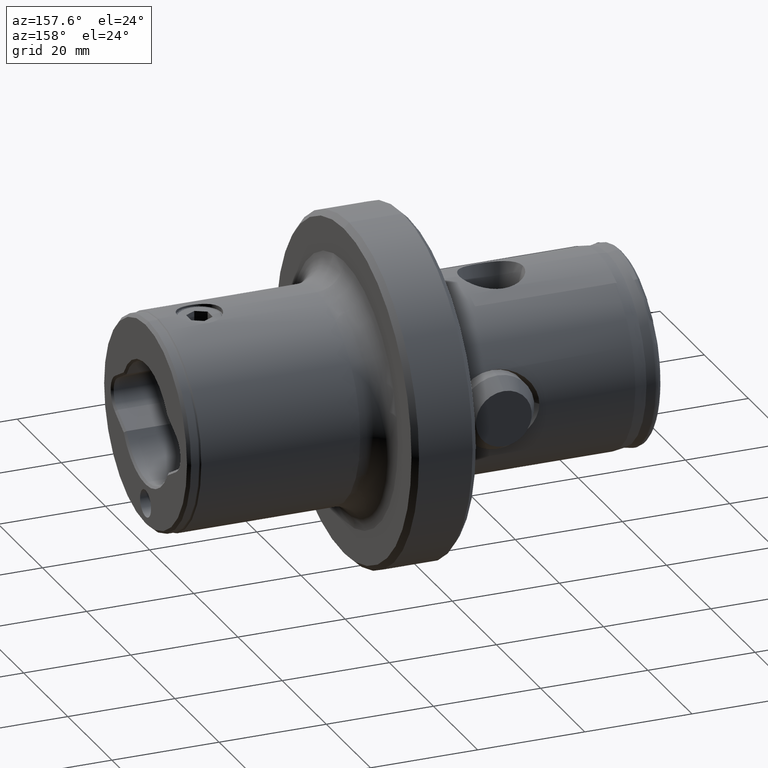
[diagram: clean part render]
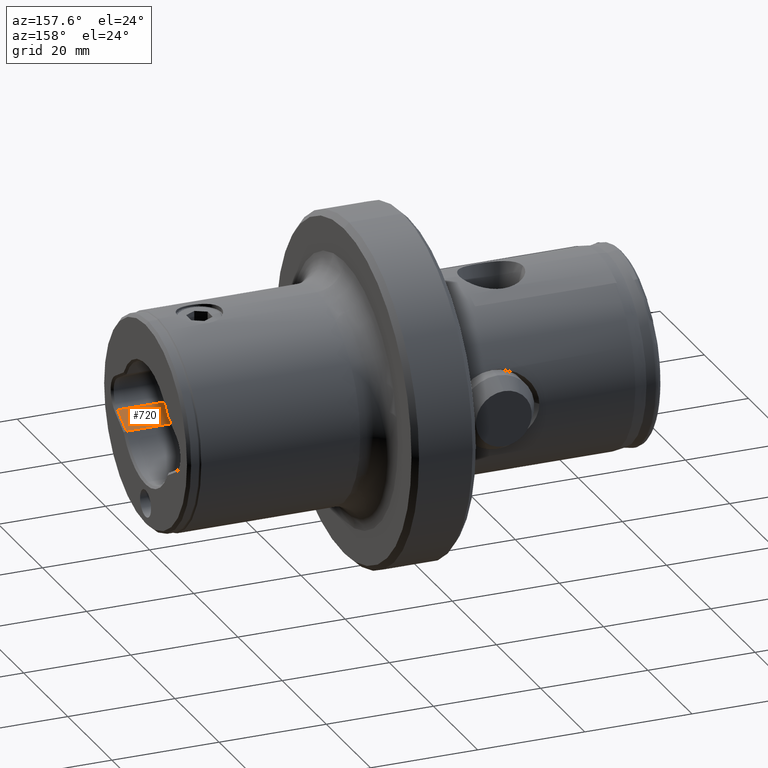
[diagram: same view with one face highlighted and labeled with its STEP entity id]
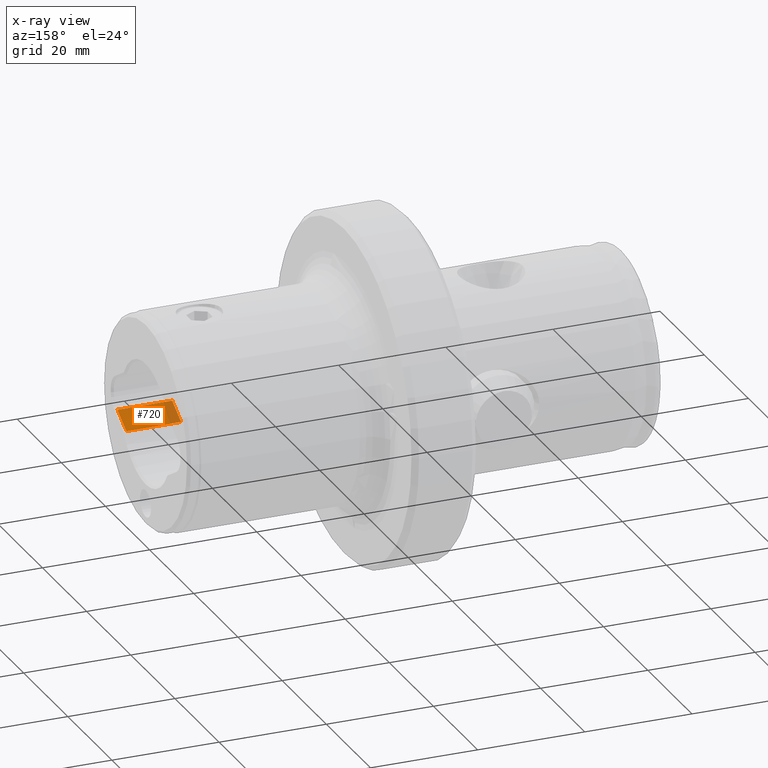
[diagram: x-ray of the same camera — body ghosted, the highlighted face saturated]
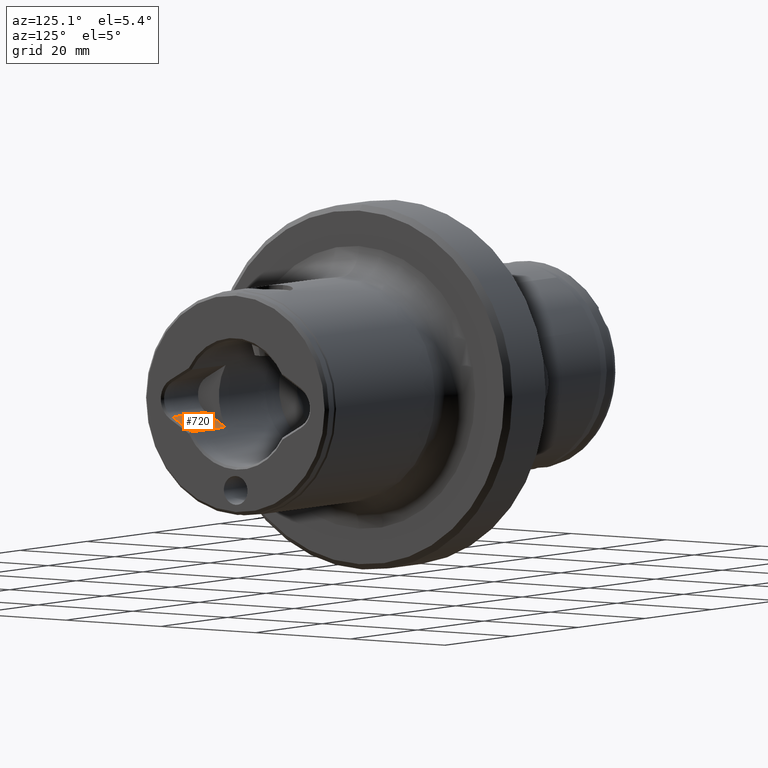
[diagram: same view with one face highlighted and labeled with its STEP entity id]
A machine part, auxiliary view. The second image highlights one B-rep face of the part: STEP entity #720.
The next image is the same camera in x-ray: the body ghosted, the highlighted face saturated — about 18% of this face is hidden behind the body in this view.
A second angle (auxiliary view) of the same face is appended — the face is thin or edge-on in the first view.
In plain terms, the highlighted planar face has unit normal (0, -0.5, -0.866).
Its self-contained STEP definition (entity closure, byte-faithful):
#1 = EDGE_CURVE ( 'NONE', #1386, #892, #4136, .T. ) ;
#702 = LINE ( 'NONE', #3358, #2704 ) ;
#717 = LINE ( 'NONE', #4903, #2852 ) ;
#720 = ADVANCED_FACE ( 'NONE', ( #2933 ), #1245, .F. ) ;
#765 = CARTESIAN_POINT ( 'NONE',  ( 88.59999999999999400, -13.66000000000002100, -3.031088913245536100 ) ) ;
#892 = VERTEX_POINT ( 'NONE', #2068 ) ;
#1048 = EDGE_CURVE ( 'NONE', #1063, #892, #702, .T. ) ;
#1063 = VERTEX_POINT ( 'NONE', #2122 ) ;
#1104 = DIRECTION ( 'NONE',  ( 1.000000000000000000, -0.0000000000000000000, -0.0000000000000000000 ) ) ;
#1245 = PLANE ( 'NONE',  #3292 ) ;
#1359 = LINE ( 'NONE', #1505, #3618 ) ;
#1386 = VERTEX_POINT ( 'NONE', #765 ) ;
#1505 = CARTESIAN_POINT ( 'NONE',  ( 78.40000000008048200, -13.66000000000002100, -3.031088913245536100 ) ) ;
#1800 = ORIENTED_EDGE ( 'NONE', *, *, #1048, .F. ) ;
#1806 = EDGE_LOOP ( 'NONE', ( #4114, #5185, #1800, #4294 ) ) ;
#2042 = DIRECTION ( 'NONE',  ( 0.0000000000000000000, -0.4999999999999975000, -0.8660254037844401500 ) ) ;
#2054 = CARTESIAN_POINT ( 'NONE',  ( 88.59999999999999400, -9.595993735232685400, -5.377444024197267000 ) ) ;
#2068 = CARTESIAN_POINT ( 'NONE',  ( 88.59999999999999400, -9.595993735232685400, -5.377444024197267900 ) ) ;
#2122 = CARTESIAN_POINT ( 'NONE',  ( 78.40000000008048200, -9.595993735232685400, -5.377444024197267900 ) ) ;
#2509 = DIRECTION ( 'NONE',  ( 0.0000000000000000000, 0.8660254037844400400, -0.4999999999999974500 ) ) ;
#2704 = VECTOR ( 'NONE', #4909, 1000.000000000000000 ) ;
#2852 = VECTOR ( 'NONE', #2509, 1000.000000000000100 ) ;
#2933 = FACE_OUTER_BOUND ( 'NONE', #1806, .T. ) ;
#3066 = VECTOR ( 'NONE', #3110, 1000.000000000000100 ) ;
#3110 = DIRECTION ( 'NONE',  ( 0.0000000000000000000, 0.8660254037844400400, -0.4999999999999974500 ) ) ;
#3254 = VERTEX_POINT ( 'NONE', #3579 ) ;
#3292 = AXIS2_PLACEMENT_3D ( 'NONE', #3629, #2042, #4828 ) ;
#3358 = CARTESIAN_POINT ( 'NONE',  ( 89.00000000000000000, -9.595993735232685400, -5.377444024197267900 ) ) ;
#3579 = CARTESIAN_POINT ( 'NONE',  ( 78.40000000008048200, -13.66000000000002100, -3.031088913245536100 ) ) ;
#3588 = EDGE_CURVE ( 'NONE', #3254, #1386, #1359, .T. ) ;
#3618 = VECTOR ( 'NONE', #1104, 1000.000000000000000 ) ;
#3629 = CARTESIAN_POINT ( 'NONE',  ( 78.40000000008048200, -13.66000000000002100, -3.031088913245536100 ) ) ;
#4114 = ORIENTED_EDGE ( 'NONE', *, *, #3588, .T. ) ;
#4136 = LINE ( 'NONE', #2054, #3066 ) ;
#4294 = ORIENTED_EDGE ( 'NONE', *, *, #4558, .F. ) ;
#4558 = EDGE_CURVE ( 'NONE', #3254, #1063, #717, .T. ) ;
#4828 = DIRECTION ( 'NONE',  ( 0.0000000000000000000, 0.8660254037844400400, -0.4999999999999974500 ) ) ;
#4903 = CARTESIAN_POINT ( 'NONE',  ( 78.40000000008048200, -13.66000000000002100, -3.031088913245536100 ) ) ;
#4909 = DIRECTION ( 'NONE',  ( 1.000000000000000000, -0.0000000000000000000, -0.0000000000000000000 ) ) ;
#5185 = ORIENTED_EDGE ( 'NONE', *, *, #1, .T. ) ;